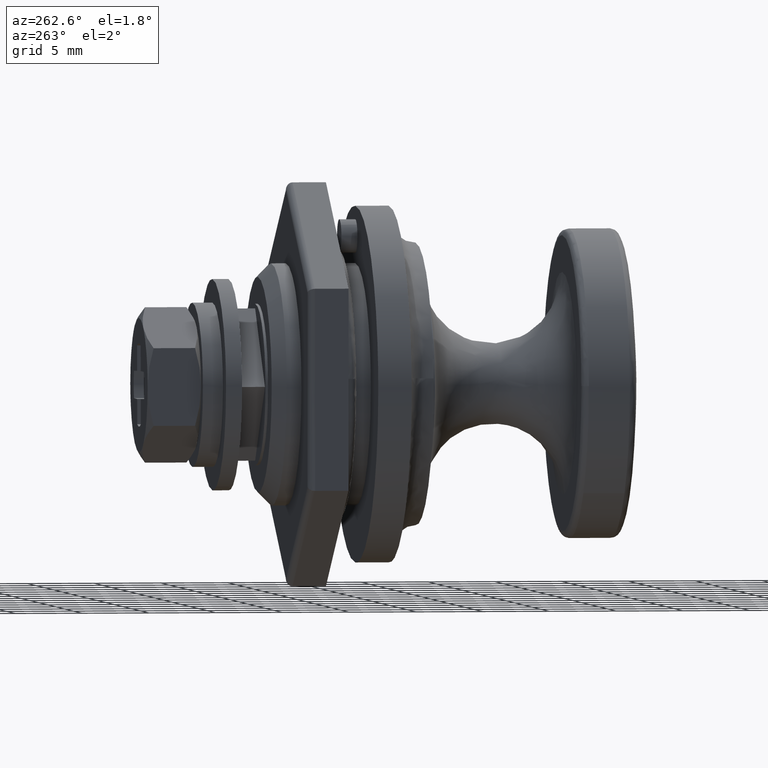
[diagram: clean part render]
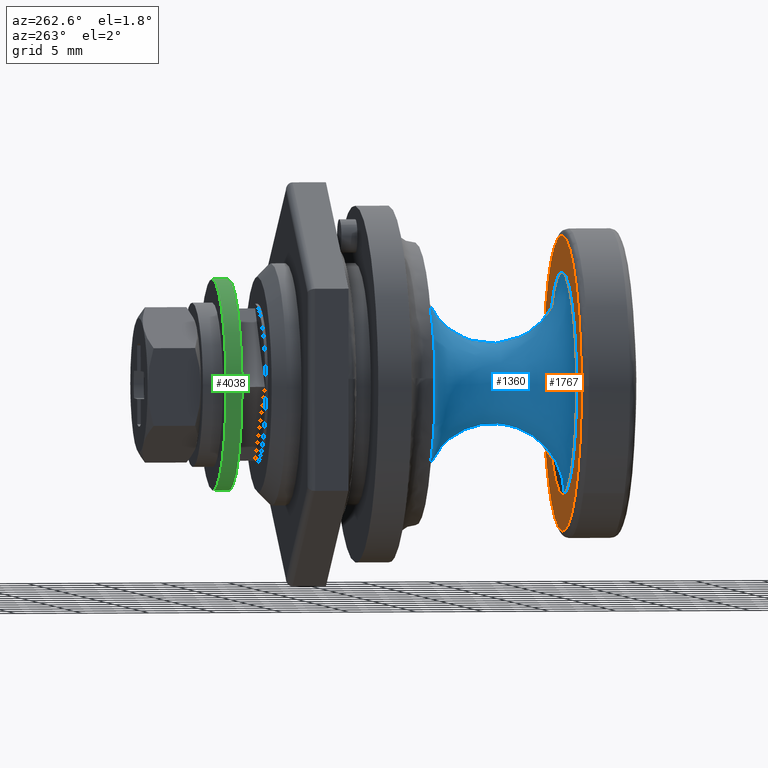
[diagram: same view with three faces highlighted in distinct colors, each labeled with its STEP entity id]
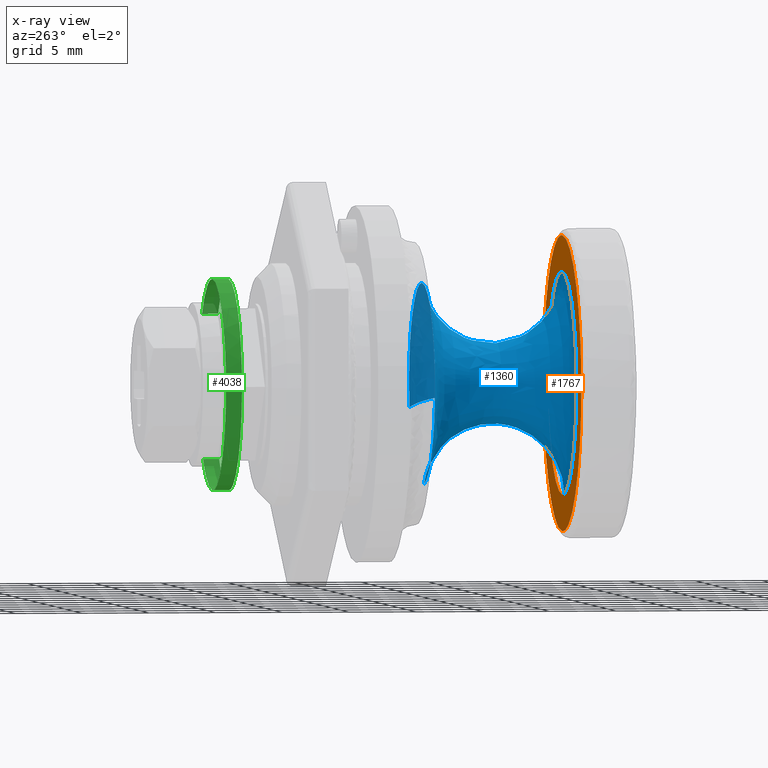
[diagram: x-ray of the same camera — body ghosted, the three highlighted faces saturated]
A machine part, auxiliary view with three faces highlighted in distinct colors.
The next image is the same camera in x-ray (body ghosted, the three faces saturated) — at least one of them is partly hidden behind the body in this view.
Their STEP definitions:

[orange] entity #1767 — the highlighted face is a freeform B-spline surface patch.
#1031=CARTESIAN_POINT('',(-15.500000000000000,-10.973222423324660,-0.767065768354060));
#1032=VERTEX_POINT('',#1031);
#1044=CARTESIAN_POINT('',(-15.500000000000000,0.0,11.000000000000201));
#1045=VERTEX_POINT('',#1044);
#1046=CARTESIAN_POINT('',(-15.500000000000000,-10.973222423324660,-0.767065768354060));
#1047=CARTESIAN_POINT('',(-15.500000000000011,-11.002727633398861,-0.345135719388376));
#1048=CARTESIAN_POINT('',(-15.500000000000020,-11.012686599277769,0.478599954533824));
#1049=CARTESIAN_POINT('',(-15.499999999999980,-10.871711350667621,1.883520965393112));
#1050=CARTESIAN_POINT('',(-15.500000000000060,-10.531943993087260,3.305034035514124));
#1051=CARTESIAN_POINT('',(-15.499999999999890,-9.939808355010413,4.792674327688419));
#1052=CARTESIAN_POINT('',(-15.500000000000030,-9.253178844984200,6.001414267282916));
#1053=CARTESIAN_POINT('',(-15.500000000000020,-8.366095481007417,7.189001629669696));
#1054=CARTESIAN_POINT('',(-15.500000000000121,-7.480418783974831,8.102883847825636));
#1055=CARTESIAN_POINT('',(-15.499999999999760,-6.437299865932927,8.945188738599139));
#1056=CARTESIAN_POINT('',(-15.500000000000380,-5.448591161532656,9.583912563030058));
#1057=CARTESIAN_POINT('',(-15.499999999999330,-4.372211468158479,10.114798507341380));
#1058=CARTESIAN_POINT('',(-15.500000000000769,-3.247518145424561,10.532590350066121));
#1059=CARTESIAN_POINT('',(-15.499999999998961,-1.809317558817956,10.894837394640270));
#1060=CARTESIAN_POINT('',(-15.500000000001000,-0.681445461975843,11.000080442778589));
#1061=CARTESIAN_POINT('',(-15.500000000000000,0.0,11.000000000000201));
#1062=B_SPLINE_CURVE_WITH_KNOTS('',3,(#1046,#1047,#1048,#1049,#1050,#1051,#1052,#1053,#1054,#1055,#1056,#1057,#1058,#1059,#1060,#1061),.UNSPECIFIED.,.F.,.U.,(4,1,1,1,1,1,1,1,1,1,1,1,1,4),(0.000000011391400,1.268881897434937,2.467289975464958,4.229642949198533,5.639528462941280,7.260891452282131,8.388795370589261,10.080644839935150,11.067561375875950,12.406950514248431,13.605353623312199,14.662768414230939,16.002157552603741,18.046479282691742),.UNSPECIFIED.);
#1063=EDGE_CURVE('',#1032,#1045,#1062,.T.);
#1065=CARTESIAN_POINT('',(-15.500000000000000,10.999131496690080,0.138226439105706));
#1066=VERTEX_POINT('',#1065);
#1067=CARTESIAN_POINT('',(-15.500000000000000,0.0,11.000000000000201));
#1068=CARTESIAN_POINT('',(-15.500000000000030,0.557957878536811,11.000024254676170));
#1069=CARTESIAN_POINT('',(-15.499999999999950,1.740828866718154,10.909832912073419));
#1070=CARTESIAN_POINT('',(-15.500000000000030,3.395459669309922,10.509525995017571));
#1071=CARTESIAN_POINT('',(-15.499999999999989,4.718382739943377,9.961643483047737));
#1072=CARTESIAN_POINT('',(-15.500000000000011,5.756033973520976,9.391843820965846));
#1073=CARTESIAN_POINT('',(-15.499999999999980,6.626797940595176,8.804437929107598));
#1074=CARTESIAN_POINT('',(-15.500000000000130,7.655028894818083,7.943771221370885));
#1075=CARTESIAN_POINT('',(-15.499999999999719,8.684932891704730,6.822605631323339));
#1076=CARTESIAN_POINT('',(-15.500000000000490,9.590966473618517,5.462846226457438));
#1077=CARTESIAN_POINT('',(-15.499999999999689,10.187593349628051,4.210892692188242));
#1078=CARTESIAN_POINT('',(-15.499999999999980,10.588233746927180,3.049243122496499));
#1079=CARTESIAN_POINT('',(-15.500000000000130,10.896200140087331,1.743967212148492));
#1080=CARTESIAN_POINT('',(-15.499999999999829,10.991607997869400,0.740776678728269));
#1081=CARTESIAN_POINT('',(-15.500000000000000,10.999131496690080,0.138226439105706));
#1082=B_SPLINE_CURVE_WITH_KNOTS('',3,(#1067,#1068,#1069,#1070,#1071,#1072,#1073,#1074,#1075,#1076,#1077,#1078,#1079,#1080,#1081),.UNSPECIFIED.,.F.,.U.,(4,1,1,1,1,1,1,1,1,1,1,1,4),(0.000000011928108,1.673874651096183,3.548630558601284,5.088605642177731,5.959021936385616,7.097267544157123,8.235509202607629,9.976330816626060,11.650217551512110,13.123239324234090,14.127571684544639,15.332771552643210,17.140555982704011),.UNSPECIFIED.);
#1083=EDGE_CURVE('',#1045,#1066,#1082,.T.);
#1128=CARTESIAN_POINT('',(-15.500000000000000,0.0,-11.000000000000201));
#1129=VERTEX_POINT('',#1128);
#1130=CARTESIAN_POINT('',(-15.500000000000000,10.999131496690080,0.138226439105706));
#1131=CARTESIAN_POINT('',(-15.500000000000000,11.005698362186649,-0.383333916839431));
#1132=CARTESIAN_POINT('',(-15.499999999999959,10.937847011541910,-1.540877755526037));
#1133=CARTESIAN_POINT('',(-15.500000000000091,10.586141901659481,-3.141666515354677));
#1134=CARTESIAN_POINT('',(-15.499999999999860,10.079433604591420,-4.456435776533463));
#1135=CARTESIAN_POINT('',(-15.500000000000210,9.531469735487399,-5.527307473283292));
#1136=CARTESIAN_POINT('',(-15.499999999999860,8.781487676979339,-6.692596249687916));
#1137=CARTESIAN_POINT('',(-15.500000000000121,7.760119833646415,-7.856272612651052));
#1138=CARTESIAN_POINT('',(-15.499999999999840,6.681613616279506,-8.762589159939523));
#1139=CARTESIAN_POINT('',(-15.500000000000380,5.742980831288246,-9.400415614113939));
#1140=CARTESIAN_POINT('',(-15.499999999998680,4.689081178309781,-9.981790392110492));
#1141=CARTESIAN_POINT('',(-15.500000000000270,3.485763783163415,-10.462925178325341));
#1142=CARTESIAN_POINT('',(-15.500000000000130,1.882260523661669,-10.883799883775200));
#1143=CARTESIAN_POINT('',(-15.499999999999840,0.748395962298610,-11.000124552040321));
#1144=CARTESIAN_POINT('',(-15.500000000000000,0.0,-11.000000000000201));
#1145=B_SPLINE_CURVE_WITH_KNOTS('',3,(#1130,#1131,#1132,#1133,#1134,#1135,#1136,#1137,#1138,#1139,#1140,#1141,#1142,#1143,#1144),.UNSPECIFIED.,.F.,.U.,(4,1,1,1,1,1,1,1,1,1,1,1,4),(0.000000012596498,1.564809975015056,3.469795716778405,4.898537987931601,5.782994593656943,7.075670215197908,9.048674985979936,10.409388157624980,11.293841910179170,12.450443986852569,14.015259648645410,15.171862360450991,17.417017435736479),.UNSPECIFIED.);
#1146=EDGE_CURVE('',#1066,#1129,#1145,.T.);
#1148=CARTESIAN_POINT('',(-15.500000000000000,0.0,-11.000000000000201));
#1149=CARTESIAN_POINT('',(-15.500000000000020,-0.558968715587932,-11.000034200349010));
#1150=CARTESIAN_POINT('',(-15.499999999999959,-1.397407011734521,-10.935944702376030));
#1151=CARTESIAN_POINT('',(-15.500000000000050,-2.643780711090591,-10.695514893724960));
#1152=CARTESIAN_POINT('',(-15.499999999999950,-3.924289940499473,-10.317205306977860));
#1153=CARTESIAN_POINT('',(-15.500000000000011,-5.394591600361554,-9.641221453289896));
#1154=CARTESIAN_POINT('',(-15.499999999999931,-6.682621590324414,-8.774646161130539));
#1155=CARTESIAN_POINT('',(-15.500000000000080,-7.768537348254650,-7.825568413301928));
#1156=CARTESIAN_POINT('',(-15.500000000000350,-8.777280997907418,-6.703761647231991));
#1157=CARTESIAN_POINT('',(-15.499999999999179,-9.589372947782415,-5.455966747954525));
#1158=CARTESIAN_POINT('',(-15.500000000000430,-10.210115024775940,-4.154400645684576));
#1159=CARTESIAN_POINT('',(-15.499999999999471,-10.718148185821439,-2.688815622553429));
#1160=CARTESIAN_POINT('',(-15.500000000000259,-10.922332778018911,-1.496255643653767));
#1161=CARTESIAN_POINT('',(-15.500000000000000,-10.973222423324660,-0.767065768354060));
#1162=B_SPLINE_CURVE_WITH_KNOTS('',3,(#1148,#1149,#1150,#1151,#1152,#1153,#1154,#1155,#1156,#1157,#1158,#1159,#1160,#1161),.UNSPECIFIED.,.F.,.U.,(4,1,1,1,1,1,1,1,1,1,1,4),(0.000000012476537,1.676900358665177,2.515356376149624,3.805291409389195,5.675694459518597,7.352602529803308,8.449023952828124,9.996944537783790,11.867348940027410,12.899294544007200,14.318219086804589,16.511094446832359),.UNSPECIFIED.);
#1163=EDGE_CURVE('',#1129,#1032,#1162,.T.);
#1222=CARTESIAN_POINT('',(-15.499999997385670,-7.983453920490495,-2.179588533573995));
#1223=VERTEX_POINT('',#1222);
#1224=CARTESIAN_POINT('',(-15.500000000000000,0.0,8.275639726529001));
#1225=VERTEX_POINT('',#1224);
#1226=CARTESIAN_POINT('',(-15.499999997385670,-7.983453920490495,-2.179588533573995));
#1227=CARTESIAN_POINT('',(-15.499999997442981,-8.108636476198299,-1.721216859978695));
#1228=CARTESIAN_POINT('',(-15.499999997538680,-8.236922051267708,-1.017441648651287));
#1229=CARTESIAN_POINT('',(-15.499999997703840,-8.292707185930370,0.071038801776079));
#1230=CARTESIAN_POINT('',(-15.499999997861041,-8.235567343429711,1.021843805449074));
#1231=CARTESIAN_POINT('',(-15.499999998030120,-8.056468206871307,1.956927600453212));
#1232=CARTESIAN_POINT('',(-15.499999998214690,-7.770032672158199,2.905452793253211));
#1233=CARTESIAN_POINT('',(-15.499999998398390,-7.388663502728041,3.778826180741329));
#1234=CARTESIAN_POINT('',(-15.499999998598410,-6.867990395943822,4.645637333970455));
#1235=CARTESIAN_POINT('',(-15.499999998787080,-6.293152677936436,5.404095806577162));
#1236=CARTESIAN_POINT('',(-15.499999998963791,-5.673605017297883,6.046901860075390));
#1237=CARTESIAN_POINT('',(-15.499999999144210,-4.958955701638929,6.644176524874050));
#1238=CARTESIAN_POINT('',(-15.499999999327130,-4.152498044059698,7.186625012063855));
#1239=CARTESIAN_POINT('',(-15.499999999507500,-3.245112383807071,7.635425206724165));
#1240=CARTESIAN_POINT('',(-15.499999999675371,-2.291099934428357,7.970008785007035));
#1241=CARTESIAN_POINT('',(-15.499999999839220,-1.247268325420529,8.210105729886060));
#1242=CARTESIAN_POINT('',(-15.499999999945221,-0.455357541933303,8.275675422398880));
#1243=CARTESIAN_POINT('',(-15.500000000000000,0.0,8.275639726529001));
#1244=B_SPLINE_CURVE_WITH_KNOTS('',3,(#1226,#1227,#1228,#1229,#1230,#1231,#1232,#1233,#1234,#1235,#1236,#1237,#1238,#1239,#1240,#1241,#1242,#1243),.UNSPECIFIED.,.F.,.U.,(4,1,1,1,1,1,1,1,1,1,1,1,1,1,1,4),(0.000000015668434,1.425467144646390,2.138198999334154,3.266693602810054,4.276403287130663,4.989139881467066,6.236428147421490,7.127339826823175,8.018251125927034,9.087344817187802,9.800080939404813,10.809790402388829,11.997682519553290,12.829210068699640,13.838913613288760,15.204982747699050),.UNSPECIFIED.);
#1245=EDGE_CURVE('',#1223,#1225,#1244,.T.);
#1305=CARTESIAN_POINT('',(-15.499999999999851,1.243212853413924,-8.181725654199578));
#1306=VERTEX_POINT('',#1305);
#1323=CARTESIAN_POINT('',(-15.500000000000000,8.252128388491789,0.623369828555173));
#1324=VERTEX_POINT('',#1323);
#1325=CARTESIAN_POINT('',(-15.500000000000000,8.252128388491789,0.623369828555173));
#1326=CARTESIAN_POINT('',(-15.500000000000011,8.278844432067022,0.269875954689429));
#1327=CARTESIAN_POINT('',(-15.499999999999980,8.286018985472618,-0.375965687311232));
#1328=CARTESIAN_POINT('',(-15.499999999999989,8.185588404078951,-1.322678628872698));
#1329=CARTESIAN_POINT('',(-15.499999999999940,7.959676434665737,-2.363599830947202));
#1330=CARTESIAN_POINT('',(-15.500000000000020,7.539296096414414,-3.501291070145320));
#1331=CARTESIAN_POINT('',(-15.500000000000091,6.939544237568491,-4.554832618988655));
#1332=CARTESIAN_POINT('',(-15.500000000000099,6.215027710391720,-5.504216589620088));
#1333=CARTESIAN_POINT('',(-15.499999999999520,5.423275786603165,-6.290100579629563));
#1334=CARTESIAN_POINT('',(-15.500000000000311,4.396776530168631,-7.047416265387375));
#1335=CARTESIAN_POINT('',(-15.500000000000060,3.310444874505081,-7.622256188478571));
#1336=CARTESIAN_POINT('',(-15.499999999999160,2.209516937253700,-7.998024576630175));
#1337=CARTESIAN_POINT('',(-15.500000000000799,1.529965582577253,-8.138155814554434));
#1338=CARTESIAN_POINT('',(-15.499999999999851,1.243212853413924,-8.181725654199578));
#1339=B_SPLINE_CURVE_WITH_KNOTS('',3,(#1325,#1326,#1327,#1328,#1329,#1330,#1331,#1332,#1333,#1334,#1335,#1336,#1337,#1338),.UNSPECIFIED.,.F.,.U.,(4,1,1,1,1,1,1,1,1,1,1,4),(0.000000017135976,1.063506160795820,1.933653332021786,2.852139351681727,4.254044407800574,5.559256820532259,6.477734203761870,7.831293180977444,8.894807791762180,10.296712267894350,11.505251469550080,12.375385845505219),.UNSPECIFIED.);
#1340=EDGE_CURVE('',#1324,#1306,#1339,.T.);
#1342=CARTESIAN_POINT('',(-15.500000000000000,0.0,8.275639726529001));
#1343=CARTESIAN_POINT('',(-15.500000000000000,0.531760000881693,8.275712184135205));
#1344=CARTESIAN_POINT('',(-15.500000000000000,1.353529329514624,8.196134676572600));
#1345=CARTESIAN_POINT('',(-15.500000000000020,2.558808486747101,7.894363125135122));
#1346=CARTESIAN_POINT('',(-15.500000000000060,3.611901034778853,7.481253774826600));
#1347=CARTESIAN_POINT('',(-15.499999999999959,4.702186083007539,6.848676044746699));
#1348=CARTESIAN_POINT('',(-15.500000000000201,5.608663398282619,6.119215374302335));
#1349=CARTESIAN_POINT('',(-15.499999999999940,6.408333414410522,5.275900985391159));
#1350=CARTESIAN_POINT('',(-15.500000000000099,7.022500237288904,4.423740092424171));
#1351=CARTESIAN_POINT('',(-15.499999999999989,7.534277645856300,3.471228868906513));
#1352=CARTESIAN_POINT('',(-15.500000000000000,8.011337635826603,2.253412369824452));
#1353=CARTESIAN_POINT('',(-15.499999999999980,8.203710241566627,1.266112460443698));
#1354=CARTESIAN_POINT('',(-15.500000000000000,8.252128388491789,0.623369828555173));
#1355=B_SPLINE_CURVE_WITH_KNOTS('',3,(#1342,#1343,#1344,#1345,#1346,#1347,#1348,#1349,#1350,#1351,#1352,#1353,#1354),.UNSPECIFIED.,.F.,.U.,(4,1,1,1,1,1,1,1,1,1,4),(0.000000017154568,1.595260778021828,2.465409126918095,3.722289414409291,4.979172362643341,6.236030476735057,7.202860674541701,8.459745899725366,9.378233964041375,10.441749799657719,12.375401241194259),.UNSPECIFIED.);
#1356=EDGE_CURVE('',#1225,#1324,#1355,.T.);
#1394=CARTESIAN_POINT('',(-15.500000000000000,0.0,-8.275639726529001));
#1395=VERTEX_POINT('',#1394);
#1396=CARTESIAN_POINT('',(-15.500000000000000,0.0,-8.275639726529001));
#1397=CARTESIAN_POINT('',(-15.499999999871960,-0.618400576908726,-8.275756105039019));
#1398=CARTESIAN_POINT('',(-15.499999999638669,-1.658369334256024,-8.158504795192393));
#1399=CARTESIAN_POINT('',(-15.499999999317939,-2.910456484761973,-7.770330691791257));
#1400=CARTESIAN_POINT('',(-15.499999999072150,-3.794794476275161,-7.369622623759401));
#1401=CARTESIAN_POINT('',(-15.499999998806549,-4.683886280500357,-6.854972169271554));
#1402=CARTESIAN_POINT('',(-15.499999998545990,-5.473702149398378,-6.239030733030794));
#1403=CARTESIAN_POINT('',(-15.499999998263300,-6.244246036531482,-5.457831570682107));
#1404=CARTESIAN_POINT('',(-15.499999998042981,-6.784208877360090,-4.771302597468280));
#1405=CARTESIAN_POINT('',(-15.499999997811059,-7.285754309127825,-3.956600160300290));
#1406=CARTESIAN_POINT('',(-15.499999997597580,-7.681634447229660,-3.131561662552139));
#1407=CARTESIAN_POINT('',(-15.499999997456319,-7.894625985174582,-2.504984125465524));
#1408=CARTESIAN_POINT('',(-15.499999997385670,-7.983453920490495,-2.179588533573995));
#1409=B_SPLINE_CURVE_WITH_KNOTS('',3,(#1396,#1397,#1398,#1399,#1400,#1401,#1402,#1403,#1404,#1405,#1406,#1407,#1408),.UNSPECIFIED.,.F.,.U.,(4,1,1,1,1,1,1,1,1,1,4),(0.000000012811586,1.855174250910018,3.120068662413957,3.921165757951437,4.764428875078266,6.197962515935477,6.914737517857185,8.053145694587904,8.812081259450071,9.781838969872887,10.793745243991999),.UNSPECIFIED.);
#1410=EDGE_CURVE('',#1395,#1223,#1409,.T.);
#1412=CARTESIAN_POINT('',(-15.499999999999851,1.243212853413924,-8.181725654199578));
#1413=CARTESIAN_POINT('',(-15.500000000000080,0.831956167775668,-8.244234954215168));
#1414=CARTESIAN_POINT('',(-15.499999999999920,0.415979555642695,-8.275650275305109));
#1415=CARTESIAN_POINT('',(-15.500000000000000,0.0,-8.275639726529001));
#1416=B_SPLINE_CURVE_WITH_KNOTS('',3,(#1412,#1413,#1414,#1415),.UNSPECIFIED.,.F.,.U.,(4,4),(1.530651E-010,1.247938225339504),.UNSPECIFIED.);
#1417=EDGE_CURVE('',#1306,#1395,#1416,.T.);
#1749=CARTESIAN_POINT('',(-15.500000000000000,-12.097538787018580,-12.098899957359951));
#1750=CARTESIAN_POINT('',(-15.500000000000000,-12.097538787018580,12.098900547445931));
#1751=CARTESIAN_POINT('',(-15.500000000000000,12.097924321985561,-12.098899957359951));
#1752=CARTESIAN_POINT('',(-15.500000000000000,12.097924321985561,12.098900547445931));
#1753=B_SPLINE_SURFACE_WITH_KNOTS('',1,1,((#1749,#1751),(#1750,#1752)),.UNSPECIFIED.,.F.,.F.,.U.,(2,2),(2,2),(0.0,24.197800504805880),(0.0,24.195463109004141),.UNSPECIFIED.);
#1754=ORIENTED_EDGE('',*,*,#1063,.F.);
#1755=ORIENTED_EDGE('',*,*,#1163,.F.);
#1756=ORIENTED_EDGE('',*,*,#1146,.F.);
#1757=ORIENTED_EDGE('',*,*,#1083,.F.);
#1758=EDGE_LOOP('',(#1754,#1755,#1756,#1757));
#1759=FACE_OUTER_BOUND('',#1758,.T.);
#1760=ORIENTED_EDGE('',*,*,#1417,.T.);
#1761=ORIENTED_EDGE('',*,*,#1410,.T.);
#1762=ORIENTED_EDGE('',*,*,#1245,.T.);
#1763=ORIENTED_EDGE('',*,*,#1356,.T.);
#1764=ORIENTED_EDGE('',*,*,#1340,.T.);
#1765=EDGE_LOOP('',(#1760,#1761,#1762,#1763,#1764));
#1766=FACE_BOUND('',#1765,.T.);
#1767=ADVANCED_FACE('',(#1759,#1766),#1753,.F.);

[blue] entity #1360 — the highlighted face is a freeform B-spline surface patch.
#629=CARTESIAN_POINT('',(-4.999999978298782,-5.497634643668281,5.101569689869629));
#630=VERTEX_POINT('',#629);
#636=CARTESIAN_POINT('',(-5.000000445811216,-7.235202085347197,-1.975310551813573));
#637=VERTEX_POINT('',#636);
#638=CARTESIAN_POINT('',(-5.000000445811216,-7.235202085347197,-1.975310551813573));
#639=CARTESIAN_POINT('',(-5.000000410024545,-7.350055748841037,-1.554763394285582));
#640=CARTESIAN_POINT('',(-5.000000354042149,-7.474175185686398,-0.869729851713604));
#641=CARTESIAN_POINT('',(-5.000000273591336,-7.516870225042019,0.181037516980341));
#642=CARTESIAN_POINT('',(-5.000000203693276,-7.436922898437111,1.151192222327790));
#643=CARTESIAN_POINT('',(-5.000000126216758,-7.171107590589412,2.313156542802132));
#644=CARTESIAN_POINT('',(-5.000000062258745,-6.730736718459543,3.380382807526897));
#645=CARTESIAN_POINT('',(-5.000000011529050,-6.139220002015143,4.345285973874630));
#646=CARTESIAN_POINT('',(-4.999999988426292,-5.726783962886996,4.854647415543150));
#647=CARTESIAN_POINT('',(-4.999999978298782,-5.497634643668281,5.101569689869629));
#648=B_SPLINE_CURVE_WITH_KNOTS('',3,(#638,#639,#640,#641,#642,#643,#644,#645,#646,#647),.UNSPECIFIED.,.F.,.U.,(4,1,1,1,1,1,1,4),(5.789062E-009,1.307841215031078,2.080661132758368,3.150719642140112,4.220763653421020,5.647506278868631,6.598666596847062,7.609271753076638),.UNSPECIFIED.);
#649=EDGE_CURVE('',#637,#630,#648,.T.);
#668=CARTESIAN_POINT('',(-5.000000445770159,1.126691928453068,-7.414888151172990));
#669=VERTEX_POINT('',#668);
#677=CARTESIAN_POINT('',(-4.999999999999999,7.478693723438517,0.564924942805974));
#678=VERTEX_POINT('',#677);
#679=CARTESIAN_POINT('',(-4.999999999999999,7.478693723438517,0.564924942805974));
#680=CARTESIAN_POINT('',(-5.000000015683109,7.518382586681232,0.040694386202742));
#681=CARTESIAN_POINT('',(-5.000000045768773,7.491145821414216,-0.869318878322943));
#682=CARTESIAN_POINT('',(-5.000000095443244,7.215306333059690,-2.158240324571295));
#683=CARTESIAN_POINT('',(-5.000000143786560,6.787733968518122,-3.265397613917286));
#684=CARTESIAN_POINT('',(-5.000000188296902,6.262652552933816,-4.163188738058034));
#685=CARTESIAN_POINT('',(-5.000000232958837,5.639442527456277,-4.974905460165441));
#686=CARTESIAN_POINT('',(-5.000000272740767,5.000471165075484,-5.620339322703151));
#687=CARTESIAN_POINT('',(-5.000000316346825,4.200782360576672,-6.235953625474619));
#688=CARTESIAN_POINT('',(-5.000000359364691,3.318571784173573,-6.756929336119882));
#689=CARTESIAN_POINT('',(-5.000000404106385,2.272696051235094,-7.180069240173712));
#690=CARTESIAN_POINT('',(-5.000000432762959,1.502075762731271,-7.357867366748024));
#691=CARTESIAN_POINT('',(-5.000000445770159,1.126691928453068,-7.414888151172990));
#692=B_SPLINE_CURVE_WITH_KNOTS('',3,(#679,#680,#681,#682,#683,#684,#685,#686,#687,#688,#689,#690,#691),.UNSPECIFIED.,.F.,.U.,(4,1,1,1,1,1,1,1,1,1,4),(0.000000017924254,1.577172857172855,2.716248007455485,3.942941587819988,5.125832610633752,5.826779140816476,7.009670334135805,7.842069207698358,8.849711957592572,10.076405425778169,11.215475594293480),.UNSPECIFIED.);
#693=EDGE_CURVE('',#678,#669,#692,.T.);
#695=CARTESIAN_POINT('',(-5.0,0.0,7.500000000000200));
#696=VERTEX_POINT('',#695);
#697=CARTESIAN_POINT('',(-5.0,0.0,7.500000000000200));
#698=CARTESIAN_POINT('',(-4.999999984346365,0.525735048034424,7.500093510591523));
#699=CARTESIAN_POINT('',(-4.999999962778238,1.343489495175638,7.413630455506423));
#700=CARTESIAN_POINT('',(-4.999999936210868,2.612828474044991,7.064137281241314));
#701=CARTESIAN_POINT('',(-4.999999919776078,3.695108671320736,6.572473989014721));
#702=CARTESIAN_POINT('',(-4.999999912094625,4.707475619098515,5.872972010094062));
#703=CARTESIAN_POINT('',(-4.999999912226322,5.456686556276125,5.174121043451220));
#704=CARTESIAN_POINT('',(-4.999999918052779,6.121491070671985,4.376141374628950));
#705=CARTESIAN_POINT('',(-4.999999929293460,6.630566799004832,3.553925267182323));
#706=CARTESIAN_POINT('',(-4.999999947123300,7.053976563788270,2.605885685229266));
#707=CARTESIAN_POINT('',(-4.999999969110291,7.342927677011434,1.653047130599187));
#708=CARTESIAN_POINT('',(-4.999999989130910,7.451213237257766,0.928975563863393));
#709=CARTESIAN_POINT('',(-4.999999999999999,7.478693723438517,0.564924942805974));
#710=B_SPLINE_CURVE_WITH_KNOTS('',3,(#697,#698,#699,#700,#701,#702,#703,#704,#705,#706,#707,#708,#709),.UNSPECIFIED.,.F.,.U.,(4,1,1,1,1,1,1,1,1,1,4),(0.000000017925005,1.577180209638858,2.453396395396705,3.942959969154319,5.125856506551412,6.133488235381158,7.009703012113953,8.236403035792829,9.024998314536139,10.120269865493260,11.215527879033750),.UNSPECIFIED.);
#711=EDGE_CURVE('',#696,#678,#710,.T.);
#713=CARTESIAN_POINT('',(-4.999999956125690,-1.509552280510449,7.346512905220385));
#714=VERTEX_POINT('',#713);
#715=CARTESIAN_POINT('',(-4.999999956125690,-1.509552280510449,7.346512905220385));
#716=CARTESIAN_POINT('',(-4.999999966678165,-1.013281737996338,7.448540268951613));
#717=CARTESIAN_POINT('',(-4.999999981404879,-0.506647476591718,7.500031332793728));
#718=CARTESIAN_POINT('',(-5.0,0.0,7.500000000000200));
#719=B_SPLINE_CURVE_WITH_KNOTS('',3,(#715,#716,#717,#718),.UNSPECIFIED.,.F.,.U.,(4,4),(2.927665E-010,1.519937498190268),.UNSPECIFIED.);
#720=EDGE_CURVE('',#714,#696,#719,.T.);
#755=CARTESIAN_POINT('',(-4.999999978298782,-5.497634643668281,5.101569689869629));
#756=CARTESIAN_POINT('',(-4.999999967373356,-5.250503479272353,5.367912042575779));
#757=CARTESIAN_POINT('',(-4.999999949651013,-4.717429052005933,5.864576464962881));
#758=CARTESIAN_POINT('',(-4.999999937060885,-3.888299667955609,6.437605690727084));
#759=CARTESIAN_POINT('',(-4.999999934906101,-2.831913498349441,6.982725871006605));
#760=CARTESIAN_POINT('',(-4.999999944760229,-2.043431998982075,7.236916909633804));
#761=CARTESIAN_POINT('',(-4.999999956125690,-1.509552280510449,7.346512905220385));
#762=B_SPLINE_CURVE_WITH_KNOTS('',3,(#755,#756,#757,#758,#759,#760,#761),.UNSPECIFIED.,.F.,.U.,(4,1,1,1,4),(2.958540E-009,1.090003286392509,2.180009169421480,3.015675162984477,4.650681151831905),.UNSPECIFIED.);
#763=EDGE_CURVE('',#630,#714,#762,.T.);
#1169=CARTESIAN_POINT('',(-15.451041130384516,-8.678560244464398,-2.369366302928235));
#1170=CARTESIAN_POINT('',(-15.451041130384512,-8.815807617968146,-1.866653996319178));
#1171=CARTESIAN_POINT('',(-15.451041130384505,-8.894091800498513,-1.351456857822245));
#1172=CARTESIAN_POINT('',(-15.451041130384509,-10.245548658320761,7.542634942676270));
#1173=CARTESIAN_POINT('',(-15.451041130384505,-1.351456857822245,8.894091800498513));
#1174=CARTESIAN_POINT('',(-15.451041130384509,7.542634942676270,10.245548658320761));
#1175=CARTESIAN_POINT('',(-15.451041130384505,8.894091800498513,1.351456857822246));
#1176=CARTESIAN_POINT('',(-15.451041130384509,10.245548658320756,-7.542634942676276));
#1177=CARTESIAN_POINT('',(-15.451041130384505,1.351456857822246,-8.894091800498513));
#1178=CARTESIAN_POINT('',(-16.218221844416092,-3.282387696230821,-0.896136983730246));
#1179=CARTESIAN_POINT('',(-16.218221844416099,-3.334297123306131,-0.706002140682991));
#1180=CARTESIAN_POINT('',(-16.218221844416096,-3.363905610233566,-0.511145309492090));
#1181=CARTESIAN_POINT('',(-16.218221844416092,-3.875050919725656,2.852760300741476));
#1182=CARTESIAN_POINT('',(-16.218221844416096,-0.511145309492090,3.363905610233566));
#1183=CARTESIAN_POINT('',(-16.218221844416092,2.852760300741476,3.875050919725656));
#1184=CARTESIAN_POINT('',(-16.218221844416096,3.363905610233566,0.511145309492091));
#1185=CARTESIAN_POINT('',(-16.218221844416092,3.875050919725654,-2.852760300741478));
#1186=CARTESIAN_POINT('',(-16.218221844416096,0.511145309492091,-3.363905610233566));
#1187=CARTESIAN_POINT('',(-10.585672210083603,-2.906239234409080,-0.793443280485264));
#1188=CARTESIAN_POINT('',(-10.585672210083599,-2.952200049389954,-0.625097127675018));
#1189=CARTESIAN_POINT('',(-10.585672210083590,-2.978415522497779,-0.452570107618884));
#1190=CARTESIAN_POINT('',(-10.585672210083596,-3.430985630116663,2.525845414878895));
#1191=CARTESIAN_POINT('',(-10.585672210083590,-0.452570107618884,2.978415522497779));
#1192=CARTESIAN_POINT('',(-10.585672210083596,2.525845414878895,3.430985630116664));
#1193=CARTESIAN_POINT('',(-10.585672210083590,2.978415522497779,0.452570107618885));
#1194=CARTESIAN_POINT('',(-10.585672210083596,3.430985630116662,-2.525845414878897));
#1195=CARTESIAN_POINT('',(-10.585672210083590,0.452570107618885,-2.978415522497779));
#1196=CARTESIAN_POINT('',(-5.002407226930391,-2.533382061068756,-0.691648144260782));
#1197=CARTESIAN_POINT('',(-5.002407226930392,-2.573446314144030,-0.544900031259640));
#1198=CARTESIAN_POINT('',(-5.002407226930391,-2.596298462207916,-0.394507437117702));
#1199=CARTESIAN_POINT('',(-5.002407226930393,-2.990805899325618,2.201791025090214));
#1200=CARTESIAN_POINT('',(-5.002407226930391,-0.394507437117702,2.596298462207916));
#1201=CARTESIAN_POINT('',(-5.002407226930393,2.201791025090214,2.990805899325618));
#1202=CARTESIAN_POINT('',(-5.002407226930391,2.596298462207916,0.394507437117702));
#1203=CARTESIAN_POINT('',(-5.002407226930393,2.990805899325615,-2.201791025090216));
#1204=CARTESIAN_POINT('',(-5.002407226930391,0.394507437117703,-2.596298462207916));
#1205=CARTESIAN_POINT('',(-4.942525179870796,-7.932103332745999,-2.165573300011472));
#1206=CARTESIAN_POINT('',(-4.942525179870795,-8.057545839119578,-1.706100086674087));
#1207=CARTESIAN_POINT('',(-4.942525179870795,-8.129096673320046,-1.235215881900679));
#1208=CARTESIAN_POINT('',(-4.942525179870794,-9.364312555220725,6.893880791419365));
#1209=CARTESIAN_POINT('',(-4.942525179870795,-1.235215881900680,8.129096673320046));
#1210=CARTESIAN_POINT('',(-4.942525179870794,6.893880791419364,9.364312555220725));
#1211=CARTESIAN_POINT('',(-4.942525179870795,8.129096673320046,1.235215881900680));
#1212=CARTESIAN_POINT('',(-4.942525179870794,9.364312555220719,-6.893880791419374));
#1213=CARTESIAN_POINT('',(-4.942525179870795,1.235215881900681,-8.129096673320046));
#1221=(BOUNDED_SURFACE()B_SPLINE_SURFACE(2,2,((#1169,#1178,#1187,#1196,#1205),(#1170,#1179,#1188,#1197,#1206),(#1171,#1180,#1189,#1198,#1207),(#1172,#1181,#1190,#1199,#1208),(#1173,#1182,#1191,#1200,#1209),(#1174,#1183,#1192,#1201,#1210),(#1175,#1184,#1193,#1202,#1211),(#1176,#1185,#1194,#1203,#1212),(#1177,#1186,#1195,#1204,#1213)),.UNSPECIFIED.,.F.,.F.,.U.)B_SPLINE_SURFACE_WITH_KNOTS((3,2,2,2,3),(3,2,3),(0.0,1.192427956146614,16.097791622841790,31.003155289536959,45.908518956232143),(0.0,9.164678449494218,18.274831286325799),.UNSPECIFIED.)GEOMETRIC_REPRESENTATION_ITEM()RATIONAL_B_SPLINE_SURFACE(((0.943136837146761,0.648801305853705,0.956886155731908,0.650634268710423,0.939655839533516),(0.962536433392656,0.662146647570448,0.976568564840903,0.664017313057318,0.958983834347286),(0.985631186633032,0.678033956252034,1.0,0.679949505814265,0.981993347802996),(0.696946495817160,0.479442408340556,0.707106781186548,0.480796906425709,0.694374155311579),(0.985631186633032,0.678033956252034,1.0,0.679949505814265,0.981993347802996),(0.696946495817160,0.479442408340556,0.707106781186548,0.480796906425709,0.694374155311579),(0.985631186633032,0.678033956252034,1.0,0.679949505814265,0.981993347802996),(0.696946495817160,0.479442408340556,0.707106781186548,0.480796906425709,0.694374155311579),(0.985631186633032,0.678033956252034,1.0,0.679949505814265,0.981993347802996)))REPRESENTATION_ITEM('')SURFACE());
#1222=CARTESIAN_POINT('',(-15.499999997385670,-7.983453920490495,-2.179588533573995));
#1223=VERTEX_POINT('',#1222);
#1224=CARTESIAN_POINT('',(-15.500000000000000,0.0,8.275639726529001));
#1225=VERTEX_POINT('',#1224);
#1226=CARTESIAN_POINT('',(-15.499999997385670,-7.983453920490495,-2.179588533573995));
#1227=CARTESIAN_POINT('',(-15.499999997442981,-8.108636476198299,-1.721216859978695));
#1228=CARTESIAN_POINT('',(-15.499999997538680,-8.236922051267708,-1.017441648651287));
#1229=CARTESIAN_POINT('',(-15.499999997703840,-8.292707185930370,0.071038801776079));
#1230=CARTESIAN_POINT('',(-15.499999997861041,-8.235567343429711,1.021843805449074));
#1231=CARTESIAN_POINT('',(-15.499999998030120,-8.056468206871307,1.956927600453212));
#1232=CARTESIAN_POINT('',(-15.499999998214690,-7.770032672158199,2.905452793253211));
#1233=CARTESIAN_POINT('',(-15.499999998398390,-7.388663502728041,3.778826180741329));
#1234=CARTESIAN_POINT('',(-15.499999998598410,-6.867990395943822,4.645637333970455));
#1235=CARTESIAN_POINT('',(-15.499999998787080,-6.293152677936436,5.404095806577162));
#1236=CARTESIAN_POINT('',(-15.499999998963791,-5.673605017297883,6.046901860075390));
#1237=CARTESIAN_POINT('',(-15.499999999144210,-4.958955701638929,6.644176524874050));
#1238=CARTESIAN_POINT('',(-15.499999999327130,-4.152498044059698,7.186625012063855));
#1239=CARTESIAN_POINT('',(-15.499999999507500,-3.245112383807071,7.635425206724165));
#1240=CARTESIAN_POINT('',(-15.499999999675371,-2.291099934428357,7.970008785007035));
#1241=CARTESIAN_POINT('',(-15.499999999839220,-1.247268325420529,8.210105729886060));
#1242=CARTESIAN_POINT('',(-15.499999999945221,-0.455357541933303,8.275675422398880));
#1243=CARTESIAN_POINT('',(-15.500000000000000,0.0,8.275639726529001));
#1244=B_SPLINE_CURVE_WITH_KNOTS('',3,(#1226,#1227,#1228,#1229,#1230,#1231,#1232,#1233,#1234,#1235,#1236,#1237,#1238,#1239,#1240,#1241,#1242,#1243),.UNSPECIFIED.,.F.,.U.,(4,1,1,1,1,1,1,1,1,1,1,1,1,1,1,4),(0.000000015668434,1.425467144646390,2.138198999334154,3.266693602810054,4.276403287130663,4.989139881467066,6.236428147421490,7.127339826823175,8.018251125927034,9.087344817187802,9.800080939404813,10.809790402388829,11.997682519553290,12.829210068699640,13.838913613288760,15.204982747699050),.UNSPECIFIED.);
#1245=EDGE_CURVE('',#1223,#1225,#1244,.T.);
#1246=ORIENTED_EDGE('',*,*,#1245,.F.);
#1247=CARTESIAN_POINT('',(-10.609979212301150,-2.907917426103718,-0.793899227130831));
#1248=VERTEX_POINT('',#1247);
#1249=CARTESIAN_POINT('',(-15.499999997385670,-7.983453920490495,-2.179588533573995));
#1250=CARTESIAN_POINT('',(-15.499880129455491,-7.794924696445288,-2.128117446827314));
#1251=CARTESIAN_POINT('',(-15.472723490986599,-7.328569269442839,-2.000795975638667));
#1252=CARTESIAN_POINT('',(-15.333796579590510,-6.644657332576855,-1.814078621501214));
#1253=CARTESIAN_POINT('',(-15.087901787616500,-5.979579406018938,-1.632503264966770));
#1254=CARTESIAN_POINT('',(-14.753094037054270,-5.340945069127686,-1.458147417683974));
#1255=CARTESIAN_POINT('',(-14.308645277138440,-4.729390323213496,-1.291184726923401));
#1256=CARTESIAN_POINT('',(-13.768815556801259,-4.194745968553260,-1.145219683702298));
#1257=CARTESIAN_POINT('',(-13.192757314338840,-3.759752659232415,-1.026460772385096));
#1258=CARTESIAN_POINT('',(-12.633005093919380,-3.441477336918457,-0.939567478568762));
#1259=CARTESIAN_POINT('',(-12.037075862453060,-3.193717571591722,-0.871925925169179));
#1260=CARTESIAN_POINT('',(-11.386591014762571,-3.002443504614636,-0.819705775616348));
#1261=CARTESIAN_POINT('',(-10.897202951719651,-2.928362632094836,-0.799480911134516));
#1262=CARTESIAN_POINT('',(-10.609979212301150,-2.907917426103718,-0.793899227130831));
#1263=B_SPLINE_CURVE_WITH_KNOTS('',3,(#1249,#1250,#1251,#1252,#1253,#1254,#1255,#1256,#1257,#1258,#1259,#1260,#1261,#1262),.UNSPECIFIED.,.F.,.U.,(4,1,1,1,1,1,1,1,1,1,1,4),(0.000000019520597,0.586289777371881,1.450313253920851,2.160046694507268,2.777204932028151,3.672081351048480,4.474371152403560,5.091531651827078,5.862982232102738,6.418426112589300,7.035586906150896,7.899597341516421),.UNSPECIFIED.);
#1264=EDGE_CURVE('',#1223,#1248,#1263,.T.);
#1265=ORIENTED_EDGE('',*,*,#1264,.T.);
#1266=CARTESIAN_POINT('',(-10.609979212301150,-2.907917426103718,-0.793899227130831));
#1267=CARTESIAN_POINT('',(-10.415082204527920,-2.894028563863306,-0.790107470646377));
#1268=CARTESIAN_POINT('',(-9.930980821078927,-2.885515041845826,-0.787783397514653));
#1269=CARTESIAN_POINT('',(-9.213683739221491,-2.968367945766567,-0.810403736652233));
#1270=CARTESIAN_POINT('',(-8.368719705619816,-3.192381959251621,-0.871563074203630));
#1271=CARTESIAN_POINT('',(-7.618739145391841,-3.528434420270733,-0.963310411845545));
#1272=CARTESIAN_POINT('',(-6.904734515199121,-4.001136462179189,-1.092364958311311));
#1273=CARTESIAN_POINT('',(-6.291822153310094,-4.549243094034536,-1.242005951870704));
#1274=CARTESIAN_POINT('',(-5.713942910387067,-5.276880476957527,-1.440661307510691));
#1275=CARTESIAN_POINT('',(-5.242359090032710,-6.186595013832152,-1.689026193685868));
#1276=CARTESIAN_POINT('',(-5.056087157620391,-6.872067156010881,-1.876169664116970));
#1277=CARTESIAN_POINT('',(-5.000000445811216,-7.235202085347197,-1.975310551813573));
#1278=B_SPLINE_CURVE_WITH_KNOTS('',3,(#1266,#1267,#1268,#1269,#1270,#1271,#1272,#1273,#1274,#1275,#1276,#1277),.UNSPECIFIED.,.F.,.U.,(4,1,1,1,1,1,1,1,1,4),(0.000000019498589,0.586286098962890,1.450304154334589,2.160033141823250,3.209199825362248,3.918929254789638,4.752063778187196,5.708656540508089,6.757821971673186,7.899547777517507),.UNSPECIFIED.);
#1279=EDGE_CURVE('',#1248,#637,#1278,.T.);
#1280=ORIENTED_EDGE('',*,*,#1279,.T.);
#1281=ORIENTED_EDGE('',*,*,#649,.T.);
#1282=ORIENTED_EDGE('',*,*,#763,.T.);
#1283=ORIENTED_EDGE('',*,*,#720,.T.);
#1284=ORIENTED_EDGE('',*,*,#711,.T.);
#1285=ORIENTED_EDGE('',*,*,#693,.T.);
#1286=CARTESIAN_POINT('',(-10.609981434404000,0.452831380918329,-2.980134991896166));
#1287=VERTEX_POINT('',#1286);
#1288=CARTESIAN_POINT('',(-10.609981434404000,0.452831380918329,-2.980134991896166));
#1289=CARTESIAN_POINT('',(-10.261214609454390,0.448953750760511,-2.954615865362556));
#1290=CARTESIAN_POINT('',(-9.661887337895479,0.451275267632542,-2.969894032844021));
#1291=CARTESIAN_POINT('',(-8.923461516147576,0.473205392142231,-3.114218684775942));
#1292=CARTESIAN_POINT('',(-8.325189310625504,0.501910710168356,-3.303131658363208));
#1293=CARTESIAN_POINT('',(-7.731553239512595,0.541444222780091,-3.563306216146055));
#1294=CARTESIAN_POINT('',(-7.180109808393357,0.593102735638388,-3.903276784158328));
#1295=CARTESIAN_POINT('',(-6.618537325673002,0.660962213107020,-4.349867748997760));
#1296=CARTESIAN_POINT('',(-6.161103288260573,0.732571321771947,-4.821135464612437));
#1297=CARTESIAN_POINT('',(-5.759130842897558,0.816883423111665,-5.376003024581917));
#1298=CARTESIAN_POINT('',(-5.457156897492576,0.897886322619496,-5.909092349670197));
#1299=CARTESIAN_POINT('',(-5.176485122863748,0.999415516960529,-6.577267563353064));
#1300=CARTESIAN_POINT('',(-5.047019240255604,1.079314289469075,-7.103090502655173));
#1301=CARTESIAN_POINT('',(-5.000000445770159,1.126691928453068,-7.414888151172990));
#1302=B_SPLINE_CURVE_WITH_KNOTS('',3,(#1288,#1289,#1290,#1291,#1292,#1293,#1294,#1295,#1296,#1297,#1298,#1299,#1300,#1301),.UNSPECIFIED.,.F.,.U.,(4,1,1,1,1,1,1,1,1,1,1,4),(0.000000019527022,1.049152516017638,1.789740789240592,2.252608198830776,2.931480175553450,3.733774333107292,4.196623908222188,5.091501132776563,5.708658139787739,6.264096792723113,6.942966741773720,7.899549990566897),.UNSPECIFIED.);
#1303=EDGE_CURVE('',#1287,#669,#1302,.T.);
#1304=ORIENTED_EDGE('',*,*,#1303,.F.);
#1305=CARTESIAN_POINT('',(-15.499999999999851,1.243212853413924,-8.181725654199578));
#1306=VERTEX_POINT('',#1305);
#1307=CARTESIAN_POINT('',(-15.499999999999851,1.243212853413924,-8.181725654199578));
#1308=CARTESIAN_POINT('',(-15.499858290885880,1.206127822393152,-7.937664833201390));
#1309=CARTESIAN_POINT('',(-15.464123620626889,1.130416301287425,-7.439398673206489));
#1310=CARTESIAN_POINT('',(-15.310827034217009,1.024436003739101,-6.741930241416029));
#1311=CARTESIAN_POINT('',(-15.078601346506820,0.928399784180051,-6.109904921616932));
#1312=CARTESIAN_POINT('',(-14.753093288266930,0.831711820915290,-5.473590402123954));
#1313=CARTESIAN_POINT('',(-14.279031054011000,0.730127199930555,-4.805050419416285));
#1314=CARTESIAN_POINT('',(-13.635413075313100,0.633722217304693,-4.170598227817235));
#1315=CARTESIAN_POINT('',(-12.883358883179829,0.554501709871314,-3.649239028422406));
#1316=CARTESIAN_POINT('',(-12.155355930993490,0.502750330018997,-3.308657292196841));
#1317=CARTESIAN_POINT('',(-11.386593264534200,0.467551400758278,-3.077009122151635));
#1318=CARTESIAN_POINT('',(-10.897204653892469,0.456015487975101,-3.001089963765811));
#1319=CARTESIAN_POINT('',(-10.609981434404000,0.452831380918329,-2.980134991896166));
#1320=B_SPLINE_CURVE_WITH_KNOTS('',3,(#1307,#1308,#1309,#1310,#1311,#1312,#1313,#1314,#1315,#1316,#1317,#1318,#1319),.UNSPECIFIED.,.F.,.U.,(4,1,1,1,1,1,1,1,1,1,4),(0.000000019522134,0.740587038285178,1.512029620496436,2.160047240173630,2.777205633601046,3.672082278682588,4.628665891633466,5.492687058594777,6.418427733994479,7.035588683464109,7.899599337089771),.UNSPECIFIED.);
#1321=EDGE_CURVE('',#1306,#1287,#1320,.T.);
#1322=ORIENTED_EDGE('',*,*,#1321,.F.);
#1323=CARTESIAN_POINT('',(-15.500000000000000,8.252128388491789,0.623369828555173));
#1324=VERTEX_POINT('',#1323);
#1325=CARTESIAN_POINT('',(-15.500000000000000,8.252128388491789,0.623369828555173));
#1326=CARTESIAN_POINT('',(-15.500000000000011,8.278844432067022,0.269875954689429));
#1327=CARTESIAN_POINT('',(-15.499999999999980,8.286018985472618,-0.375965687311232));
#1328=CARTESIAN_POINT('',(-15.499999999999989,8.185588404078951,-1.322678628872698));
#1329=CARTESIAN_POINT('',(-15.499999999999940,7.959676434665737,-2.363599830947202));
#1330=CARTESIAN_POINT('',(-15.500000000000020,7.539296096414414,-3.501291070145320));
#1331=CARTESIAN_POINT('',(-15.500000000000091,6.939544237568491,-4.554832618988655));
#1332=CARTESIAN_POINT('',(-15.500000000000099,6.215027710391720,-5.504216589620088));
#1333=CARTESIAN_POINT('',(-15.499999999999520,5.423275786603165,-6.290100579629563));
#1334=CARTESIAN_POINT('',(-15.500000000000311,4.396776530168631,-7.047416265387375));
#1335=CARTESIAN_POINT('',(-15.500000000000060,3.310444874505081,-7.622256188478571));
#1336=CARTESIAN_POINT('',(-15.499999999999160,2.209516937253700,-7.998024576630175));
#1337=CARTESIAN_POINT('',(-15.500000000000799,1.529965582577253,-8.138155814554434));
#1338=CARTESIAN_POINT('',(-15.499999999999851,1.243212853413924,-8.181725654199578));
#1339=B_SPLINE_CURVE_WITH_KNOTS('',3,(#1325,#1326,#1327,#1328,#1329,#1330,#1331,#1332,#1333,#1334,#1335,#1336,#1337,#1338),.UNSPECIFIED.,.F.,.U.,(4,1,1,1,1,1,1,1,1,1,1,4),(0.000000017135976,1.063506160795820,1.933653332021786,2.852139351681727,4.254044407800574,5.559256820532259,6.477734203761870,7.831293180977444,8.894807791762180,10.296712267894350,11.505251469550080,12.375385845505219),.UNSPECIFIED.);
#1340=EDGE_CURVE('',#1324,#1306,#1339,.T.);
#1341=ORIENTED_EDGE('',*,*,#1340,.F.);
#1342=CARTESIAN_POINT('',(-15.500000000000000,0.0,8.275639726529001));
#1343=CARTESIAN_POINT('',(-15.500000000000000,0.531760000881693,8.275712184135205));
#1344=CARTESIAN_POINT('',(-15.500000000000000,1.353529329514624,8.196134676572600));
#1345=CARTESIAN_POINT('',(-15.500000000000020,2.558808486747101,7.894363125135122));
#1346=CARTESIAN_POINT('',(-15.500000000000060,3.611901034778853,7.481253774826600));
#1347=CARTESIAN_POINT('',(-15.499999999999959,4.702186083007539,6.848676044746699));
#1348=CARTESIAN_POINT('',(-15.500000000000201,5.608663398282619,6.119215374302335));
#1349=CARTESIAN_POINT('',(-15.499999999999940,6.408333414410522,5.275900985391159));
#1350=CARTESIAN_POINT('',(-15.500000000000099,7.022500237288904,4.423740092424171));
#1351=CARTESIAN_POINT('',(-15.499999999999989,7.534277645856300,3.471228868906513));
#1352=CARTESIAN_POINT('',(-15.500000000000000,8.011337635826603,2.253412369824452));
#1353=CARTESIAN_POINT('',(-15.499999999999980,8.203710241566627,1.266112460443698));
#1354=CARTESIAN_POINT('',(-15.500000000000000,8.252128388491789,0.623369828555173));
#1355=B_SPLINE_CURVE_WITH_KNOTS('',3,(#1342,#1343,#1344,#1345,#1346,#1347,#1348,#1349,#1350,#1351,#1352,#1353,#1354),.UNSPECIFIED.,.F.,.U.,(4,1,1,1,1,1,1,1,1,1,4),(0.000000017154568,1.595260778021828,2.465409126918095,3.722289414409291,4.979172362643341,6.236030476735057,7.202860674541701,8.459745899725366,9.378233964041375,10.441749799657719,12.375401241194259),.UNSPECIFIED.);
#1356=EDGE_CURVE('',#1225,#1324,#1355,.T.);
#1357=ORIENTED_EDGE('',*,*,#1356,.F.);
#1358=EDGE_LOOP('',(#1246,#1265,#1280,#1281,#1282,#1283,#1284,#1285,#1304,#1322,#1341,#1357));
#1359=FACE_OUTER_BOUND('',#1358,.T.);
#1360=ADVANCED_FACE('',(#1359),#1221,.F.);

[green] entity #4038 — the highlighted face is a freeform B-spline surface patch.
#3863=CARTESIAN_POINT('',(12.230000000000000,-5.993911797082733,5.069075001298970));
#3864=CARTESIAN_POINT('',(12.230000000000002,-5.848837048367472,5.240618181772798));
#3865=CARTESIAN_POINT('',(12.230000000000000,-5.694188812446535,5.403583419196043));
#3866=CARTESIAN_POINT('',(12.230000000000000,-0.290605393250493,11.097772231642578));
#3867=CARTESIAN_POINT('',(12.230000000000000,5.403583419196043,5.694188812446535));
#3868=CARTESIAN_POINT('',(12.230000000000000,11.097772231642578,0.290605393250493));
#3869=CARTESIAN_POINT('',(12.230000000000000,5.694188812446535,-5.403583419196043));
#3870=CARTESIAN_POINT('',(12.230000000000000,0.290605393250493,-11.097772231642578));
#3871=CARTESIAN_POINT('',(12.230000000000000,-5.403583419196043,-5.694188812446535));
#3872=CARTESIAN_POINT('',(10.969250000000006,-5.993911797082733,5.069075001298970));
#3873=CARTESIAN_POINT('',(10.969249999999999,-5.848837048367472,5.240618181772798));
#3874=CARTESIAN_POINT('',(10.969250000000001,-5.694188812446535,5.403583419196043));
#3875=CARTESIAN_POINT('',(10.969250000000001,-0.290605393250493,11.097772231642578));
#3876=CARTESIAN_POINT('',(10.969250000000001,5.403583419196043,5.694188812446535));
#3877=CARTESIAN_POINT('',(10.969250000000001,11.097772231642578,0.290605393250493));
#3878=CARTESIAN_POINT('',(10.969250000000001,5.694188812446535,-5.403583419196043));
#3879=CARTESIAN_POINT('',(10.969250000000001,0.290605393250493,-11.097772231642578));
#3880=CARTESIAN_POINT('',(10.969250000000001,-5.403583419196043,-5.694188812446535));
#3888=(BOUNDED_SURFACE()B_SPLINE_SURFACE(2,1,((#3863,#3872),(#3864,#3873),(#3865,#3874),(#3866,#3875),(#3867,#3876),(#3868,#3877),(#3869,#3878),(#3870,#3879),(#3871,#3880)),.UNSPECIFIED.,.F.,.F.,.U.)B_SPLINE_SURFACE_WITH_KNOTS((3,2,2,2,3),(2,2),(0.0,0.520252234340615,13.526558092855980,26.532863951371340,39.539169809886687),(0.0,1.0),.UNSPECIFIED.)GEOMETRIC_REPRESENTATION_ITEM()RATIONAL_B_SPLINE_SURFACE(((0.977505800795127,0.977505800795127),(0.988284271247462,0.988284271247462),(1.0,1.0),(0.707106781186548,0.707106781186548),(1.0,1.0),(0.707106781186548,0.707106781186548),(1.0,1.0),(0.707106781186548,0.707106781186548),(1.0,1.0)))REPRESENTATION_ITEM('')SURFACE());
#3889=CARTESIAN_POINT('',(10.999999999998151,-5.993911879951799,5.069075053288463));
#3890=VERTEX_POINT('',#3889);
#3891=CARTESIAN_POINT('',(11.0,0.0,7.850000000000109));
#3892=VERTEX_POINT('',#3891);
#3893=CARTESIAN_POINT('',(10.999999999998151,-5.993911879951799,5.069075053288463));
#3894=CARTESIAN_POINT('',(10.999999999998231,-5.707218035116155,5.408131325687279));
#3895=CARTESIAN_POINT('',(10.999999999998430,-5.189667589192654,5.924095750991281));
#3896=CARTESIAN_POINT('',(10.999999999998680,-4.194610234333458,6.672496691723786));
#3897=CARTESIAN_POINT('',(10.999999999998989,-3.140763703133366,7.237452890962721));
#3898=CARTESIAN_POINT('',(10.999999999999460,-2.024570294505983,7.606057788848401));
#3899=CARTESIAN_POINT('',(10.999999999999510,-1.012352694240759,7.804340965567381));
#3900=CARTESIAN_POINT('',(11.000000000000179,-0.372974324633524,7.850018617919778));
#3901=CARTESIAN_POINT('',(11.0,0.0,7.850000000000109));
#3902=B_SPLINE_CURVE_WITH_KNOTS('',3,(#3893,#3894,#3895,#3896,#3897,#3898,#3899,#3900,#3901),.UNSPECIFIED.,.F.,.U.,(4,1,1,1,1,1,4),(5.905752E-009,1.332050973343073,2.184567410122196,3.729738994346236,4.901950069587938,5.701183353888687,6.820105886369104),.UNSPECIFIED.);
#3903=EDGE_CURVE('',#3890,#3892,#3902,.T.);
#3904=ORIENTED_EDGE('',*,*,#3903,.F.);
#3905=CARTESIAN_POINT('',(12.199999999999999,-5.993911879840377,5.069075053420216));
#3906=VERTEX_POINT('',#3905);
#3907=CARTESIAN_POINT('',(12.199999999999999,-5.993911879840377,5.069075053420216));
#3908=CARTESIAN_POINT('',(10.999999999998151,-5.993911879951799,5.069075053288463));
#3909=QUASI_UNIFORM_CURVE('',1,(#3907,#3908),.UNSPECIFIED.,.F.,.U.);
#3910=EDGE_CURVE('',#3906,#3890,#3909,.T.);
#3911=ORIENTED_EDGE('',*,*,#3910,.F.);
#3912=CARTESIAN_POINT('',(12.199999999999999,0.0,7.850000000000109));
#3913=VERTEX_POINT('',#3912);
#3914=CARTESIAN_POINT('',(12.199999999999999,-5.993911879840377,5.069075053420216));
#3915=CARTESIAN_POINT('',(12.200000000000051,-5.707216532319878,5.408129359429403));
#3916=CARTESIAN_POINT('',(12.199999999999950,-5.088697539643473,6.024796365624426));
#3917=CARTESIAN_POINT('',(12.200000000000051,-4.173492040460783,6.674960121657198));
#3918=CARTESIAN_POINT('',(12.199999999999950,-3.294309523487772,7.142404626570187));
#3919=CARTESIAN_POINT('',(12.200000000000051,-2.402032590061042,7.498920041311594));
#3920=CARTESIAN_POINT('',(12.199999999999950,-1.278757480940811,7.778989294937821));
#3921=CARTESIAN_POINT('',(12.200000000000040,-0.444018041796571,7.850031261242887));
#3922=CARTESIAN_POINT('',(12.199999999999999,0.0,7.850000000000109));
#3923=B_SPLINE_CURVE_WITH_KNOTS('',3,(#3914,#3915,#3916,#3917,#3918,#3919,#3920,#3921,#3922),.UNSPECIFIED.,.F.,.U.,(4,1,1,1,1,1,4),(5.903784E-009,1.332050973307822,2.610826261486855,3.356776576903910,4.315847500496050,5.488054918793981,6.820105886196573),.UNSPECIFIED.);
#3924=EDGE_CURVE('',#3906,#3913,#3923,.T.);
#3925=ORIENTED_EDGE('',*,*,#3924,.T.);
#3926=CARTESIAN_POINT('',(12.199999999999999,7.850000000000099,-0.000000392840430));
#3927=VERTEX_POINT('',#3926);
#3928=CARTESIAN_POINT('',(12.199999999999999,0.0,7.850000000000109));
#3929=CARTESIAN_POINT('',(12.199999999999950,0.417448490228487,7.850026566140409));
#3930=CARTESIAN_POINT('',(12.200000000000090,1.284446658921688,7.780689977119662));
#3931=CARTESIAN_POINT('',(12.199999999999990,2.519388588891979,7.471384106942176));
#3932=CARTESIAN_POINT('',(12.200000000000010,3.524472370590707,7.036835470323534));
#3933=CARTESIAN_POINT('',(12.199999999999971,4.411615630516450,6.516149804428059));
#3934=CARTESIAN_POINT('',(12.200000000000070,5.154726444834339,5.950755016191684));
#3935=CARTESIAN_POINT('',(12.199999999999889,5.850557374394022,5.259160670512371));
#3936=CARTESIAN_POINT('',(12.200000000000070,6.413227389148697,4.556115125314687));
#3937=CARTESIAN_POINT('',(12.200000000000241,6.995552887062874,3.630381200146254));
#3938=CARTESIAN_POINT('',(12.199999999999790,7.456323143963267,2.564470889192982));
#3939=CARTESIAN_POINT('',(12.200000000000360,7.776920960924708,1.284434220822482));
#3940=CARTESIAN_POINT('',(12.199999999999770,7.850046147889241,0.465614308039264));
#3941=CARTESIAN_POINT('',(12.199999999999999,7.850000000000099,-0.000000392840430));
#3942=B_SPLINE_CURVE_WITH_KNOTS('',3,(#3928,#3929,#3930,#3931,#3932,#3933,#3934,#3935,#3936,#3937,#3938,#3939,#3940,#3941),.UNSPECIFIED.,.F.,.U.,(4,1,1,1,1,1,1,1,1,1,1,4),(0.000000019137961,1.252343461058432,2.601019852062739,3.805202228899191,4.527705775662848,5.683720257005404,6.598877011753929,7.465896081676486,8.381068720374330,9.874253122640237,10.933933506560610,12.330770730121589),.UNSPECIFIED.);
#3943=EDGE_CURVE('',#3913,#3927,#3942,.T.);
#3944=ORIENTED_EDGE('',*,*,#3943,.T.);
#3945=CARTESIAN_POINT('',(12.199999999999999,0.0,-7.850000000000109));
#3946=VERTEX_POINT('',#3945);
#3947=CARTESIAN_POINT('',(12.199999999999999,7.850000000000099,-0.000000392840430));
#3948=CARTESIAN_POINT('',(12.200000000000010,7.850025250639940,-0.401390844388105));
#3949=CARTESIAN_POINT('',(12.199999999999990,7.791992690229801,-1.155998071602659));
#3950=CARTESIAN_POINT('',(12.199999999999990,7.562817352378415,-2.176580693491895));
#3951=CARTESIAN_POINT('',(12.200000000000029,7.232360157735810,-3.100136351105163));
#3952=CARTESIAN_POINT('',(12.199999999999930,6.822549133693459,-3.920552128581695));
#3953=CARTESIAN_POINT('',(12.199999999999990,6.291454251838048,-4.726034040300627));
#3954=CARTESIAN_POINT('',(12.200000000000241,5.605319149328588,-5.536463635706182));
#3955=CARTESIAN_POINT('',(12.199999999999850,4.770291920698896,-6.270276640476440));
#3956=CARTESIAN_POINT('',(12.200000000000180,3.891925647417267,-6.837852241489281));
#3957=CARTESIAN_POINT('',(12.199999999999889,3.055173138863115,-7.249430856703853));
#3958=CARTESIAN_POINT('',(12.200000000000040,2.207020001404391,-7.552911127074693));
#3959=CARTESIAN_POINT('',(12.199999999999990,1.172052309327740,-7.788653309474158));
#3960=CARTESIAN_POINT('',(12.199999999999999,0.433505491438680,-7.850037347477926));
#3961=CARTESIAN_POINT('',(12.199999999999999,0.0,-7.850000000000109));
#3962=B_SPLINE_CURVE_WITH_KNOTS('',3,(#3947,#3948,#3949,#3950,#3951,#3952,#3953,#3954,#3955,#3956,#3957,#3958,#3959,#3960,#3961),.UNSPECIFIED.,.F.,.U.,(4,1,1,1,1,1,1,1,1,1,1,1,4),(0.000000019166485,1.204168663633503,2.263848417274829,3.130859779896211,4.142373488753488,5.009375800982304,6.020890823736802,7.321391575959141,8.332898817037167,9.151743393853685,10.115087020141880,11.030259625896770,12.330770287298201),.UNSPECIFIED.);
#3963=EDGE_CURVE('',#3927,#3946,#3962,.T.);
#3964=ORIENTED_EDGE('',*,*,#3963,.T.);
#3965=CARTESIAN_POINT('',(12.199999999999999,-5.403583358667495,-5.694188734679226));
#3966=VERTEX_POINT('',#3965);
#3967=CARTESIAN_POINT('',(12.199999999999999,0.0,-7.850000000000109));
#3968=CARTESIAN_POINT('',(12.200000000000040,-0.450095215162450,-7.850035584262022));
#3969=CARTESIAN_POINT('',(12.199999999999910,-1.257149684538467,-7.780396962660840));
#3970=CARTESIAN_POINT('',(12.200000000000131,-2.299728057329213,-7.525002852755820));
#3971=CARTESIAN_POINT('',(12.199999999999889,-3.230951543708863,-7.175711368850232));
#3972=CARTESIAN_POINT('',(12.200000000000079,-4.279631273546436,-6.629189981760906));
#3973=CARTESIAN_POINT('',(12.199999999999990,-5.009604590464960,-6.068184934890485));
#3974=CARTESIAN_POINT('',(12.199999999999999,-5.403583358667495,-5.694188734679226));
#3975=B_SPLINE_CURVE_WITH_KNOTS('',3,(#3967,#3968,#3969,#3970,#3971,#3972,#3973,#3974),.UNSPECIFIED.,.F.,.U.,(4,1,1,1,1,4),(4.766553E-009,1.350282767367838,2.421199335146553,3.212737683654134,4.330218651007902,5.959871772046688),.UNSPECIFIED.);
#3976=EDGE_CURVE('',#3946,#3966,#3975,.T.);
#3977=ORIENTED_EDGE('',*,*,#3976,.T.);
#3978=CARTESIAN_POINT('',(11.000000000002199,-5.403583358753798,-5.694188734597327));
#3979=VERTEX_POINT('',#3978);
#3980=CARTESIAN_POINT('',(12.199999999999999,-5.403583358667495,-5.694188734679226));
#3981=CARTESIAN_POINT('',(11.000000000002199,-5.403583358753798,-5.694188734597327));
#3982=QUASI_UNIFORM_CURVE('',1,(#3980,#3981),.UNSPECIFIED.,.F.,.U.);
#3983=EDGE_CURVE('',#3966,#3979,#3982,.T.);
#3984=ORIENTED_EDGE('',*,*,#3983,.T.);
#3985=CARTESIAN_POINT('',(11.0,0.0,-7.850000000000109));
#3986=VERTEX_POINT('',#3985);
#3987=CARTESIAN_POINT('',(11.0,0.0,-7.850000000000109));
#3988=CARTESIAN_POINT('',(11.000000000000149,-0.356970760112301,-7.850013572092293));
#3989=CARTESIAN_POINT('',(11.000000000000380,-0.993307193871439,-7.806518371334320));
#3990=CARTESIAN_POINT('',(11.000000000000810,-1.954910386223617,-7.621782601561316));
#3991=CARTESIAN_POINT('',(11.000000000001130,-2.784804911306726,-7.357375977007610));
#3992=CARTESIAN_POINT('',(11.000000000001419,-3.607265829610406,-6.988968559485971));
#3993=CARTESIAN_POINT('',(11.000000000001879,-4.480301930241982,-6.479919386875894));
#3994=CARTESIAN_POINT('',(11.000000000002061,-5.077123122503510,-6.004044227223399));
#3995=CARTESIAN_POINT('',(11.000000000002199,-5.403583358753798,-5.694188734597327));
#3996=B_SPLINE_CURVE_WITH_KNOTS('',3,(#3987,#3988,#3989,#3990,#3991,#3992,#3993,#3994,#3995),.UNSPECIFIED.,.F.,.U.,(4,1,1,1,1,1,4),(4.765679E-009,1.070912418640665,1.909023474592172,2.933380538644107,3.678356958472276,4.609589009538737,5.959871772165664),.UNSPECIFIED.);
#3997=EDGE_CURVE('',#3986,#3979,#3996,.T.);
#3998=ORIENTED_EDGE('',*,*,#3997,.F.);
#3999=CARTESIAN_POINT('',(11.0,7.850000000000099,-0.000000392840430));
#4000=VERTEX_POINT('',#3999);
#4001=CARTESIAN_POINT('',(11.0,7.850000000000099,-0.000000392840430));
#4002=CARTESIAN_POINT('',(11.000000000000011,7.850010730293093,-0.337166596915876));
#4003=CARTESIAN_POINT('',(10.999999999999980,7.807524687361815,-0.995443706246599));
#4004=CARTESIAN_POINT('',(11.000000000000020,7.622008760745949,-1.958988129762759));
#4005=CARTESIAN_POINT('',(10.999999999999970,7.290237600948717,-2.984416585667288));
#4006=CARTESIAN_POINT('',(11.000000000000069,6.820926571245757,-3.938556003346250));
#4007=CARTESIAN_POINT('',(10.999999999999840,6.241189549773199,-4.789083776182319));
#4008=CARTESIAN_POINT('',(11.000000000000339,5.621513212934846,-5.507470798968177));
#4009=CARTESIAN_POINT('',(10.999999999999840,4.834571300213161,-6.220740331527753));
#4010=CARTESIAN_POINT('',(11.000000000000050,3.830156034741962,-6.891887972190808));
#4011=CARTESIAN_POINT('',(10.999999999999931,2.803389533192807,-7.358362613148943));
#4012=CARTESIAN_POINT('',(11.000000000000041,1.833209957089798,-7.649388847322506));
#4013=CARTESIAN_POINT('',(10.999999999999980,0.947279111208620,-7.811526276769415));
#4014=CARTESIAN_POINT('',(11.000000000000011,0.321112298544399,-7.850008943437762));
#4015=CARTESIAN_POINT('',(11.0,0.0,-7.850000000000109));
#4016=B_SPLINE_CURVE_WITH_KNOTS('',3,(#4001,#4002,#4003,#4004,#4005,#4006,#4007,#4008,#4009,#4010,#4011,#4012,#4013,#4014,#4015),.UNSPECIFIED.,.F.,.U.,(4,1,1,1,1,1,1,1,1,1,1,1,4),(0.000000019166485,1.011498429873429,1.974844918407733,2.938191048946470,4.238705153547633,5.153880697208061,6.020890823736802,7.080549241325755,8.332898817037167,9.633414380383329,10.452259624297399,11.367433118741349,12.330770287298201),.UNSPECIFIED.);
#4017=EDGE_CURVE('',#4000,#3986,#4016,.T.);
#4018=ORIENTED_EDGE('',*,*,#4017,.F.);
#4019=CARTESIAN_POINT('',(11.0,0.0,7.850000000000109));
#4020=CARTESIAN_POINT('',(10.999999999999989,0.305055602309242,7.850004813075906));
#4021=CARTESIAN_POINT('',(11.000000000000020,1.011503241189020,7.808783489605385));
#4022=CARTESIAN_POINT('',(10.999999999999970,2.086115614171313,7.598470250919873));
#4023=CARTESIAN_POINT('',(11.000000000000110,3.298791746274233,7.164597792997828));
#4024=CARTESIAN_POINT('',(10.999999999999970,4.353084387252022,6.571596731751523));
#4025=CARTESIAN_POINT('',(11.000000000000091,5.362723543428603,5.773653943534306));
#4026=CARTESIAN_POINT('',(10.999999999999940,6.111175025811762,4.972873633651787));
#4027=CARTESIAN_POINT('',(11.000000000000069,6.796627804762799,3.980332013924997));
#4028=CARTESIAN_POINT('',(10.999999999999870,7.271792070331928,3.029093597189808));
#4029=CARTESIAN_POINT('',(11.000000000000069,7.574514184743669,2.112635230122563));
#4030=CARTESIAN_POINT('',(11.000000000000069,7.789820206533114,1.139933396249279));
#4031=CARTESIAN_POINT('',(10.999999999999780,7.850046009939287,0.465615550421258));
#4032=CARTESIAN_POINT('',(11.0,7.850000000000099,-0.000000392840430));
#4033=B_SPLINE_CURVE_WITH_KNOTS('',3,(#4019,#4020,#4021,#4022,#4023,#4024,#4025,#4026,#4027,#4028,#4029,#4030,#4031,#4032),.UNSPECIFIED.,.F.,.U.,(4,1,1,1,1,1,1,1,1,1,1,4),(0.000000019137961,0.915168156615916,2.119346607049669,3.275361227864453,4.768548567799768,5.731893946445147,7.128722576853818,8.043896104112763,9.344412381246716,10.307758648123960,10.933933506560610,12.330770730121589),.UNSPECIFIED.);
#4034=EDGE_CURVE('',#3892,#4000,#4033,.T.);
#4035=ORIENTED_EDGE('',*,*,#4034,.F.);
#4036=EDGE_LOOP('',(#3904,#3911,#3925,#3944,#3964,#3977,#3984,#3998,#4018,#4035));
#4037=FACE_OUTER_BOUND('',#4036,.T.);
#4038=ADVANCED_FACE('',(#4037),#3888,.T.);